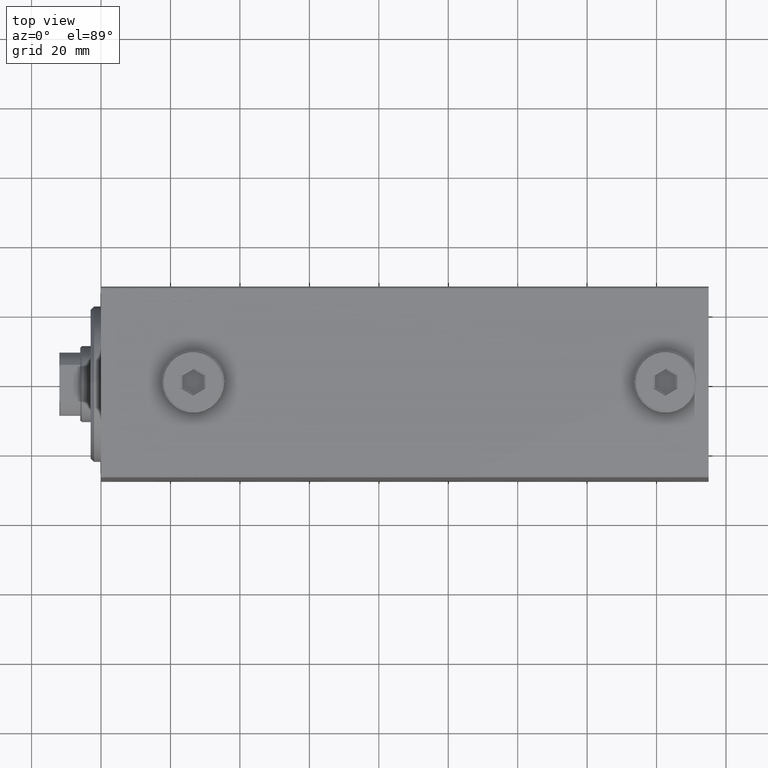
[diagram: clean part render]
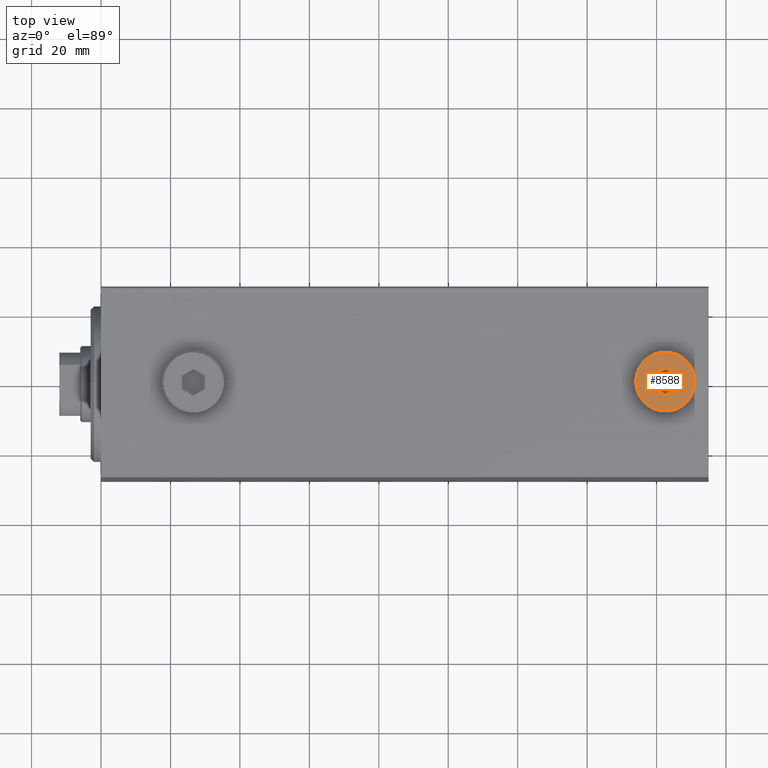
[diagram: same view with one face highlighted and labeled with its STEP entity id]
A machine part, top view. The second image highlights one B-rep face of the part: STEP entity #8588.
In plain terms, the highlighted planar face has unit normal (0, 0, 1).
Its self-contained STEP definition (entity closure, byte-faithful):
#163 = CARTESIAN_POINT ( 'NONE',  ( 8.500000000000010658, 1.071565949253934716E-15, 5.000000000000000000 ) ) ;
#203 = LINE ( 'NONE', #18408, #27537 ) ;
#690 = EDGE_CURVE ( 'NONE', #4129, #20629, #3670, .T. ) ;
#2602 = VERTEX_POINT ( 'NONE', #8458 ) ;
#2924 = DIRECTION ( 'NONE',  ( 0.8660254037844387076, -0.4999999999999998890, 0.000000000000000000 ) ) ;
#3670 = LINE ( 'NONE', #17719, #31014 ) ;
#4129 = VERTEX_POINT ( 'NONE', #25244 ) ;
#6748 = CARTESIAN_POINT ( 'NONE',  ( 0.000000000000000000, 0.000000000000000000, 5.000000000000000000 ) ) ;
#6837 = VECTOR ( 'NONE', #36663, 1000.000000000000000 ) ;
#8322 = EDGE_CURVE ( 'NONE', #2602, #4129, #40979, .T. ) ;
#8458 = CARTESIAN_POINT ( 'NONE',  ( -1.006139216460143630E-15, -4.041451884327387667, 5.000000000000000000 ) ) ;
#8588 = ADVANCED_FACE ( 'NONE', ( #45046, #9785 ), #27969, .T. ) ;
#9030 = EDGE_CURVE ( 'NONE', #36462, #31638, #203, .T. ) ;
#9665 = CARTESIAN_POINT ( 'NONE',  ( 1.590596867181068292E-15, 4.041451884327386779, 5.000000000000000000 ) ) ;
#9785 = FACE_OUTER_BOUND ( 'NONE', #31381, .T. ) ;
#10064 = ORIENTED_EDGE ( 'NONE', *, *, #23125, .T. ) ;
#11116 = DIRECTION ( 'NONE',  ( 0.000000000000000000, 0.000000000000000000, 1.000000000000000000 ) ) ;
#11500 = ORIENTED_EDGE ( 'NONE', *, *, #9030, .T. ) ;
#11499 = DIRECTION ( 'NONE',  ( 0.000000000000000000, -1.000000000000000000, 0.000000000000000000 ) ) ;
#12822 = VECTOR ( 'NONE', #16536, 1000.000000000000114 ) ;
#13284 = CARTESIAN_POINT ( 'NONE',  ( 3.250000000000003109, 2.165063509461103042, 5.000000000000000000 ) ) ;
#15175 = ORIENTED_EDGE ( 'NONE', *, *, #34091, .T. ) ;
#15852 = VECTOR ( 'NONE', #42983, 1000.000000000000000 ) ;
#16432 = AXIS2_PLACEMENT_3D ( 'NONE', #16710, #41597, #27513 ) ;
#16536 = DIRECTION ( 'NONE',  ( -0.8660254037844385966, 0.4999999999999999445, 0.000000000000000000 ) ) ;
#16710 = CARTESIAN_POINT ( 'NONE',  ( 0.000000000000000000, 0.000000000000000000, 5.000000000000000000 ) ) ;
#17719 = CARTESIAN_POINT ( 'NONE',  ( -3.500000000000006661, 1.732050807568878081, 5.000000000000000000 ) ) ;
#18408 = CARTESIAN_POINT ( 'NONE',  ( 3.500000000000006661, -1.732050807568878303, 5.000000000000000000 ) ) ;
#19018 = ORIENTED_EDGE ( 'NONE', *, *, #39149, .T. ) ;
#20314 = VERTEX_POINT ( 'NONE', #163 ) ;
#20629 = VERTEX_POINT ( 'NONE', #31695 ) ;
#22052 = ORIENTED_EDGE ( 'NONE', *, *, #8322, .T. ) ;
#22456 = AXIS2_PLACEMENT_3D ( 'NONE', #6748, #11116, #25160 ) ;
#23125 = EDGE_CURVE ( 'NONE', #20629, #45271, #26484, .T. ) ;
#24140 = CARTESIAN_POINT ( 'NONE',  ( -8.500000000000010658, 0.000000000000000000, 5.000000000000000000 ) ) ;
#24783 = DIRECTION ( 'NONE',  ( 0.000000000000000000, 0.000000000000000000, 1.000000000000000000 ) ) ;
#25160 = DIRECTION ( 'NONE',  ( 1.000000000000000000, 0.000000000000000000, 0.000000000000000000 ) ) ;
#25244 = CARTESIAN_POINT ( 'NONE',  ( -3.500000000000006661, -2.020725942163694278, 5.000000000000000000 ) ) ;
#25621 = VECTOR ( 'NONE', #2924, 1000.000000000000000 ) ;
#26484 = LINE ( 'NONE', #40800, #6837 ) ;
#27513 = DIRECTION ( 'NONE',  ( 1.000000000000000000, 0.000000000000000000, -0.000000000000000000 ) ) ;
#27537 = VECTOR ( 'NONE', #11499, 1000.000000000000000 ) ;
#27969 = PLANE ( 'NONE',  #16432 ) ;
#27995 = CARTESIAN_POINT ( 'NONE',  ( 0.2500000000000027756, -3.897114317029979347, 5.000000000000000000 ) ) ;
#28000 = CARTESIAN_POINT ( 'NONE',  ( 0.000000000000000000, 0.000000000000000000, 5.000000000000000000 ) ) ;
#28917 = LINE ( 'NONE', #27995, #15852 ) ;
#30589 = LINE ( 'NONE', #13284, #25621 ) ;
#31014 = VECTOR ( 'NONE', #31786, 1000.000000000000000 ) ;
#31381 = EDGE_LOOP ( 'NONE', ( #43560, #19018 ) ) ;
#31638 = VERTEX_POINT ( 'NONE', #33281 ) ;
#31695 = CARTESIAN_POINT ( 'NONE',  ( -3.500000000000006661, 2.020725942163692945, 5.000000000000000000 ) ) ;
#31786 = DIRECTION ( 'NONE',  ( 0.000000000000000000, 1.000000000000000000, 0.000000000000000000 ) ) ;
#32417 = VERTEX_POINT ( 'NONE', #24140 ) ;
#33281 = CARTESIAN_POINT ( 'NONE',  ( 3.500000000000006661, -2.020725942163693833, 5.000000000000000000 ) ) ;
#33604 = EDGE_CURVE ( 'NONE', #32417, #20314, #42337, .T. ) ;
#33807 = EDGE_LOOP ( 'NONE', ( #45547, #10064, #42005, #11500, #15175, #22052 ) ) ;
#34091 = EDGE_CURVE ( 'NONE', #31638, #2602, #28917, .T. ) ;
#36098 = DIRECTION ( 'NONE',  ( 1.000000000000000000, 0.000000000000000000, 0.000000000000000000 ) ) ;
#36462 = VERTEX_POINT ( 'NONE', #44755 ) ;
#36618 = CIRCLE ( 'NONE', #39587, 8.500000000000010658 ) ;
#36663 = DIRECTION ( 'NONE',  ( 0.8660254037844387076, 0.4999999999999998335, 0.000000000000000000 ) ) ;
#37519 = CARTESIAN_POINT ( 'NONE',  ( -3.250000000000003109, -2.165063509461102598, 5.000000000000000000 ) ) ;
#39149 = EDGE_CURVE ( 'NONE', #20314, #32417, #36618, .T. ) ;
#39587 = AXIS2_PLACEMENT_3D ( 'NONE', #28000, #24783, #36098 ) ;
#40166 = EDGE_CURVE ( 'NONE', #45271, #36462, #30589, .T. ) ;
#40800 = CARTESIAN_POINT ( 'NONE',  ( -0.2500000000000027756, 3.897114317029978459, 5.000000000000000000 ) ) ;
#40979 = LINE ( 'NONE', #37519, #12822 ) ;
#41597 = DIRECTION ( 'NONE',  ( 0.000000000000000000, 0.000000000000000000, 1.000000000000000000 ) ) ;
#42005 = ORIENTED_EDGE ( 'NONE', *, *, #40166, .T. ) ;
#42337 = CIRCLE ( 'NONE', #22456, 8.500000000000010658 ) ;
#42983 = DIRECTION ( 'NONE',  ( -0.8660254037844387076, -0.4999999999999998890, 0.000000000000000000 ) ) ;
#43560 = ORIENTED_EDGE ( 'NONE', *, *, #33604, .T. ) ;
#44755 = CARTESIAN_POINT ( 'NONE',  ( 3.500000000000006661, 2.020725942163694722, 5.000000000000000000 ) ) ;
#45046 = FACE_BOUND ( 'NONE', #33807, .T. ) ;
#45271 = VERTEX_POINT ( 'NONE', #9665 ) ;
#45547 = ORIENTED_EDGE ( 'NONE', *, *, #690, .T. ) ;